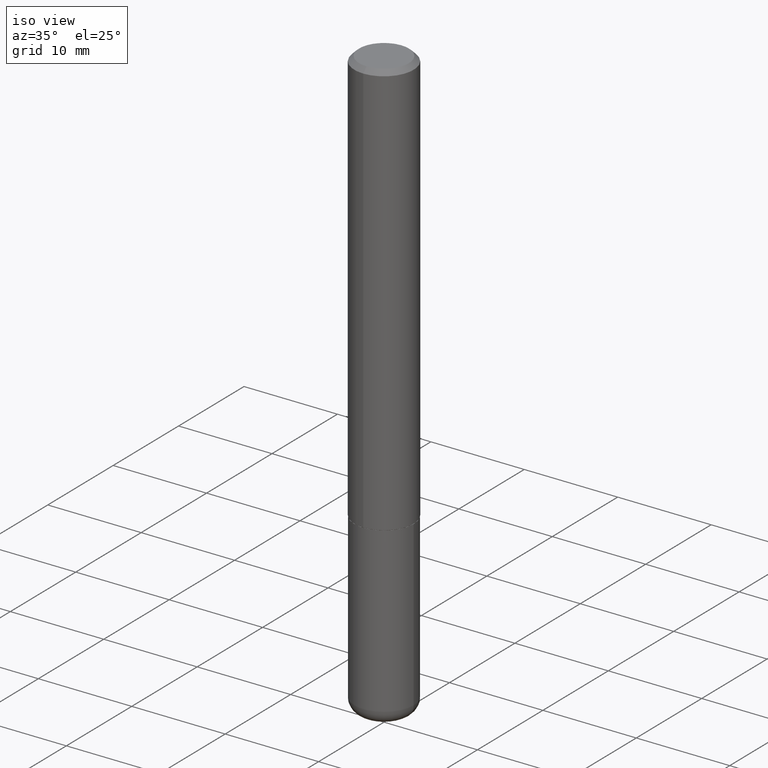
[diagram: clean part render]
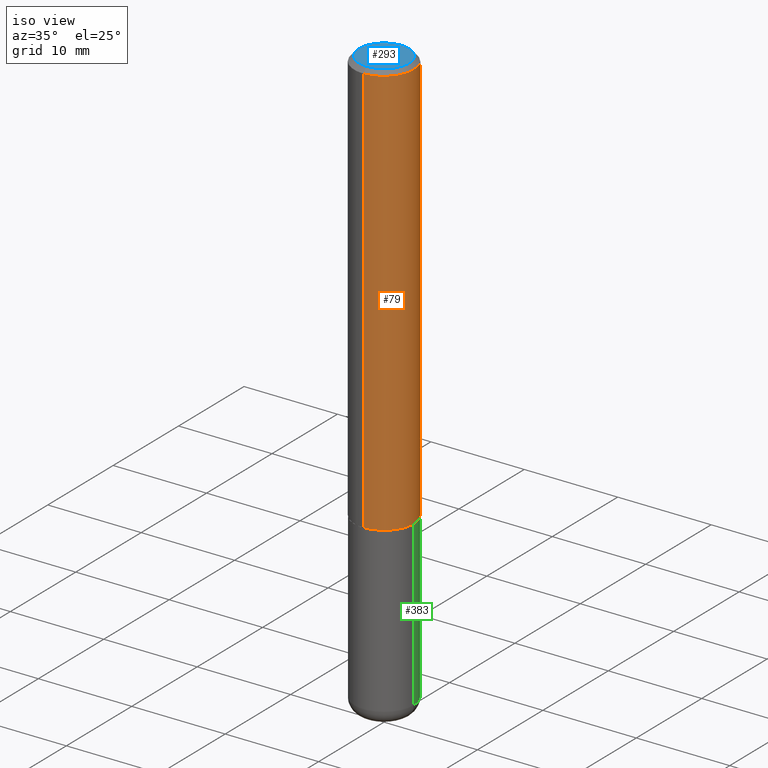
[diagram: same view with three faces highlighted in distinct colors, each labeled with its STEP entity id]
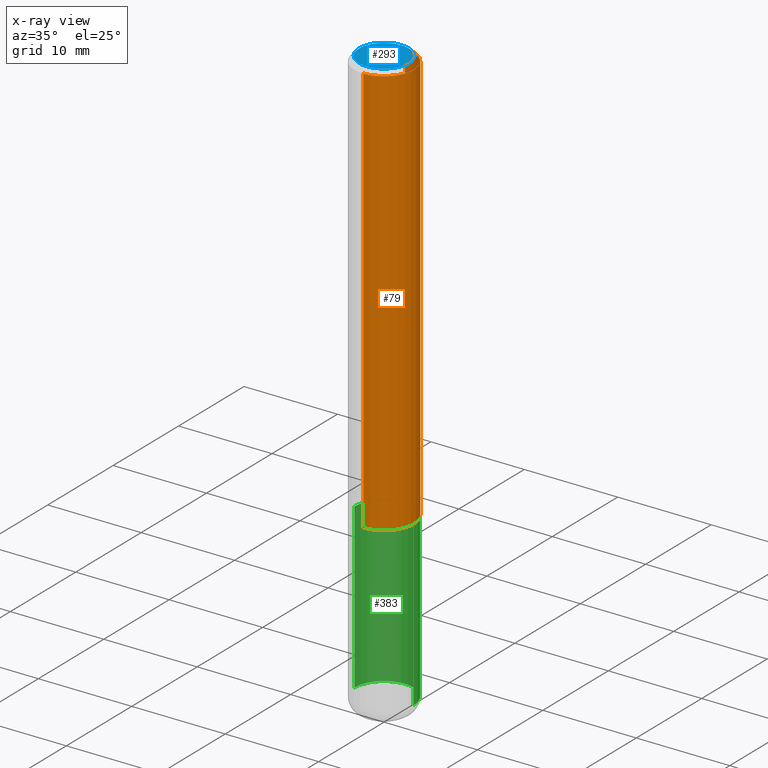
[diagram: x-ray of the same camera — body ghosted, the three highlighted faces saturated]
A machine part, iso view with three faces highlighted in distinct colors.
The next image is the same camera in x-ray (body ghosted, the three faces saturated) — at least one of them is partly hidden behind the body in this view.
Their STEP definitions:

[orange] entity #79 — the highlighted cylindrical surface (edge-blend (fillet) strip) has radius 3.175 mm, axis along (-0, 0, 1).
#5 = DIRECTION ( 'NONE',  ( -2.444769625519019670E-29, 3.492482605351917386E-15, 1.000000000000000000 ) ) ;
#9 = LINE ( 'NONE', #329, #259 ) ;
#15 = CARTESIAN_POINT ( 'NONE',  ( 4.275902075032765006E-29, -6.108352076760502035E-15, -1.748999999999999888 ) ) ;
#18 = ORIENTED_EDGE ( 'NONE', *, *, #261, .F. ) ;
#46 = VERTEX_POINT ( 'NONE', #75 ) ;
#65 = ORIENTED_EDGE ( 'NONE', *, *, #347, .T. ) ;
#68 = AXIS2_PLACEMENT_3D ( 'NONE', #15, #357, #205 ) ;
#72 = DIRECTION ( 'NONE',  ( -6.982962677686266711E-15, -1.000000000000000000, 3.492482605351917386E-15 ) ) ;
#75 = CARTESIAN_POINT ( 'NONE',  ( -8.728703347107422194E-16, -0.1250000000000063560, -1.748999999999999222 ) ) ;
#79 = ADVANCED_FACE ( 'NONE', ( #101 ), #103, .T. ) ;
#83 = CARTESIAN_POINT ( 'NONE',  ( 8.881784197001260212E-16, 0.1250000000000001110, -4.365603256689900677E-16 ) ) ;
#91 = CIRCLE ( 'NONE', #68, 0.1250000000000002498 ) ;
#101 = FACE_OUTER_BOUND ( 'NONE', #215, .T. ) ;
#103 = CYLINDRICAL_SURFACE ( 'NONE', #390, 0.1250000000000001110 ) ;
#128 = CIRCLE ( 'NONE', #176, 0.1250000000000000000 ) ;
#140 = DIRECTION ( 'NONE',  ( -2.444769625519019670E-29, 3.492482605351917386E-15, 1.000000000000000000 ) ) ;
#142 = DIRECTION ( 'NONE',  ( -2.444769625519019670E-29, 3.492482605351917386E-15, 1.000000000000000000 ) ) ;
#167 = CARTESIAN_POINT ( 'NONE',  ( 4.889539251038044560E-31, -6.984965210703842315E-17, -0.02000000000000002470 ) ) ;
#171 = CARTESIAN_POINT ( 'NONE',  ( 8.728703347107837333E-16, 0.1249999999999999306, -0.02000000000000046185 ) ) ;
#176 = AXIS2_PLACEMENT_3D ( 'NONE', #167, #142, #391 ) ;
#205 = DIRECTION ( 'NONE',  ( -6.982962677686265133E-15, -1.000000000000000000, 4.370956789862812472E-15 ) ) ;
#215 = EDGE_LOOP ( 'NONE', ( #65, #282, #18, #400 ) ) ;
#224 = VERTEX_POINT ( 'NONE', #260 ) ;
#259 = VECTOR ( 'NONE', #140, 39.37007874015748143 ) ;
#260 = CARTESIAN_POINT ( 'NONE',  ( -8.575622497214408537E-16, -0.1250000000000000555, -0.01999999999999959102 ) ) ;
#261 = EDGE_CURVE ( 'NONE', #224, #398, #128, .T. ) ;
#265 = VECTOR ( 'NONE', #362, 39.37007874015748143 ) ;
#272 = VERTEX_POINT ( 'NONE', #364 ) ;
#282 = ORIENTED_EDGE ( 'NONE', *, *, #331, .T. ) ;
#292 = LINE ( 'NONE', #83, #265 ) ;
#329 = CARTESIAN_POINT ( 'NONE',  ( -8.728703347107841277E-16, -0.1250000000000001110, 4.365603256689900677E-16 ) ) ;
#331 = EDGE_CURVE ( 'NONE', #272, #398, #292, .T. ) ;
#347 = EDGE_CURVE ( 'NONE', #46, #272, #91, .T. ) ;
#348 = CARTESIAN_POINT ( 'NONE',  ( 0.000000000000000000, 0.000000000000000000, 0.000000000000000000 ) ) ;
#357 = DIRECTION ( 'NONE',  ( -2.444769625519019670E-29, 3.492482605351917386E-15, 1.000000000000000000 ) ) ;
#362 = DIRECTION ( 'NONE',  ( -2.444769625519019670E-29, 3.492482605351917386E-15, 1.000000000000000000 ) ) ;
#364 = CARTESIAN_POINT ( 'NONE',  ( 8.881784197001479121E-16, 0.1249999999999941019, -1.749000000000000332 ) ) ;
#384 = EDGE_CURVE ( 'NONE', #46, #224, #9, .T. ) ;
#390 = AXIS2_PLACEMENT_3D ( 'NONE', #348, #5, #72 ) ;
#391 = DIRECTION ( 'NONE',  ( -6.982962677686265922E-15, -1.000000000000000000, 3.483106191921935554E-15 ) ) ;
#398 = VERTEX_POINT ( 'NONE', #171 ) ;
#400 = ORIENTED_EDGE ( 'NONE', *, *, #384, .F. ) ;

[blue] entity #293 — the highlighted planar face has unit normal (0, -0, -1).
#8 = CIRCLE ( 'NONE', #196, 0.1050000000000001210 ) ;
#11 = PLANE ( 'NONE',  #197 ) ;
#41 = EDGE_LOOP ( 'NONE', ( #297, #188 ) ) ;
#51 = VERTEX_POINT ( 'NONE', #356 ) ;
#77 = CARTESIAN_POINT ( 'NONE',  ( 8.030407079339212239E-16, 0.1050000000000001210, -4.690498403409406824E-16 ) ) ;
#85 = CARTESIAN_POINT ( 'NONE',  ( 7.332110811570587146E-16, 0.1050000000000001210, -4.178802569514461450E-16 ) ) ;
#110 = FACE_OUTER_BOUND ( 'NONE', #41, .T. ) ;
#136 = DIRECTION ( 'NONE',  ( -2.444769625519019670E-29, 3.492482605351917386E-15, 1.000000000000000000 ) ) ;
#151 = EDGE_CURVE ( 'NONE', #359, #51, #342, .T. ) ;
#187 = EDGE_CURVE ( 'NONE', #51, #359, #8, .T. ) ;
#188 = ORIENTED_EDGE ( 'NONE', *, *, #187, .T. ) ;
#190 = DIRECTION ( 'NONE',  ( -2.444769625519019670E-29, 3.492482605351917386E-15, 1.000000000000000000 ) ) ;
#196 = AXIS2_PLACEMENT_3D ( 'NONE', #324, #190, #386 ) ;
#197 = AXIS2_PLACEMENT_3D ( 'NONE', #85, #325, #397 ) ;
#228 = CARTESIAN_POINT ( 'NONE',  ( 2.501956864421970211E-45, -3.574177598218272952E-31, -1.023391667789888407E-16 ) ) ;
#286 = DIRECTION ( 'NONE',  ( -6.982962677686265133E-15, -1.000000000000000000, 3.492482605351917386E-15 ) ) ;
#293 = ADVANCED_FACE ( 'NONE', ( #110 ), #11, .F. ) ;
#297 = ORIENTED_EDGE ( 'NONE', *, *, #151, .T. ) ;
#324 = CARTESIAN_POINT ( 'NONE',  ( 2.501956864421970211E-45, -3.574177598218272952E-31, -1.023391667789888407E-16 ) ) ;
#325 = DIRECTION ( 'NONE',  ( 2.444769625519019109E-29, -3.492482605351917386E-15, -1.000000000000000000 ) ) ;
#342 = CIRCLE ( 'NONE', #355, 0.1050000000000001210 ) ;
#355 = AXIS2_PLACEMENT_3D ( 'NONE', #228, #136, #286 ) ;
#356 = CARTESIAN_POINT ( 'NONE',  ( -7.889572697437263111E-16, -0.1050000000000001210, 2.643715067829629270E-16 ) ) ;
#359 = VERTEX_POINT ( 'NONE', #77 ) ;
#386 = DIRECTION ( 'NONE',  ( -6.982962677686265133E-15, -1.000000000000000000, 3.492482605351917386E-15 ) ) ;
#397 = DIRECTION ( 'NONE',  ( 6.982962677686265922E-15, 1.000000000000000000, -3.492482605351917386E-15 ) ) ;

[green] entity #383 — the highlighted cylindrical surface (edge-blend (fillet) strip) has radius 3.175 mm, axis along (-0, 0, 1).
#13 = CARTESIAN_POINT ( 'NONE',  ( 0.1249999999999999861, -9.392084801488058387E-15, -2.440000000000000391 ) ) ;
#30 = VECTOR ( 'NONE', #339, 39.37007874015748143 ) ;
#38 = EDGE_CURVE ( 'NONE', #394, #221, #60, .T. ) ;
#45 = CARTESIAN_POINT ( 'NONE',  ( 4.279570410823989044E-29, -6.110092342975505460E-15, -1.750000000000000222 ) ) ;
#49 = DIRECTION ( 'NONE',  ( -2.445468806185136597E-29, 3.491481338843145583E-15, 1.000000000000000000 ) ) ;
#60 = LINE ( 'NONE', #372, #30 ) ;
#66 = DIRECTION ( 'NONE',  ( -2.445468806185136877E-29, 3.491481338843145188E-15, 1.000000000000000000 ) ) ;
#74 = AXIS2_PLACEMENT_3D ( 'NONE', #168, #294, #80 ) ;
#80 = DIRECTION ( 'NONE',  ( 1.000000000000000000, -6.982962677686266711E-15, 4.876176775795935793E-29 ) ) ;
#100 = ORIENTED_EDGE ( 'NONE', *, *, #38, .F. ) ;
#111 = DIRECTION ( 'NONE',  ( -2.445468806185136597E-29, 3.491481338843145583E-15, 1.000000000000000000 ) ) ;
#117 = FACE_OUTER_BOUND ( 'NONE', #248, .T. ) ;
#141 = ORIENTED_EDGE ( 'NONE', *, *, #232, .F. ) ;
#145 = EDGE_CURVE ( 'NONE', #380, #412, #284, .T. ) ;
#146 = AXIS2_PLACEMENT_3D ( 'NONE', #45, #49, #263 ) ;
#168 = CARTESIAN_POINT ( 'NONE',  ( 0.000000000000000000, 0.000000000000000000, 0.000000000000000000 ) ) ;
#221 = VERTEX_POINT ( 'NONE', #289 ) ;
#225 = CARTESIAN_POINT ( 'NONE',  ( -0.1250000000000000000, 8.881784197001252323E-16, -6.148668862818632227E-30 ) ) ;
#227 = CIRCLE ( 'NONE', #146, 0.1250000000000000000 ) ;
#232 = EDGE_CURVE ( 'NONE', #221, #412, #227, .T. ) ;
#248 = EDGE_LOOP ( 'NONE', ( #376, #275, #141, #100 ) ) ;
#263 = DIRECTION ( 'NONE',  ( 1.000000000000000000, -6.982962677686262766E-15, 0.000000000000000000 ) ) ;
#275 = ORIENTED_EDGE ( 'NONE', *, *, #145, .T. ) ;
#284 = LINE ( 'NONE', #225, #288 ) ;
#288 = VECTOR ( 'NONE', #66, 39.37007874015748143 ) ;
#289 = CARTESIAN_POINT ( 'NONE',  ( 0.1250000000000000000, -6.982962677686288010E-15, -1.750000000000000222 ) ) ;
#294 = DIRECTION ( 'NONE',  ( -2.445468806185136597E-29, 3.491481338843145583E-15, 1.000000000000000000 ) ) ;
#300 = DIRECTION ( 'NONE',  ( 1.000000000000000000, -6.982962677686262766E-15, 0.000000000000000000 ) ) ;
#326 = CYLINDRICAL_SURFACE ( 'NONE', #74, 0.1250000000000000000 ) ;
#330 = CARTESIAN_POINT ( 'NONE',  ( 5.966943887091733341E-29, -8.519214466777275048E-15, -2.440000000000000391 ) ) ;
#338 = EDGE_CURVE ( 'NONE', #394, #380, #392, .T. ) ;
#339 = DIRECTION ( 'NONE',  ( -2.445468806185136877E-29, 3.491481338843145188E-15, 1.000000000000000000 ) ) ;
#372 = CARTESIAN_POINT ( 'NONE',  ( 0.1250000000000000000, -8.728703347107833388E-16, 6.095220969744919741E-30 ) ) ;
#376 = ORIENTED_EDGE ( 'NONE', *, *, #338, .T. ) ;
#380 = VERTEX_POINT ( 'NONE', #399 ) ;
#383 = ADVANCED_FACE ( 'NONE', ( #117 ), #326, .T. ) ;
#392 = CIRCLE ( 'NONE', #414, 0.1250000000000000000 ) ;
#394 = VERTEX_POINT ( 'NONE', #13 ) ;
#399 = CARTESIAN_POINT ( 'NONE',  ( -0.1249999999999999861, -7.631036047077151393E-15, -2.440000000000000391 ) ) ;
#408 = CARTESIAN_POINT ( 'NONE',  ( -0.1250000000000000000, -6.426474985176265022E-15, -1.750000000000000222 ) ) ;
#412 = VERTEX_POINT ( 'NONE', #408 ) ;
#414 = AXIS2_PLACEMENT_3D ( 'NONE', #330, #111, #300 ) ;